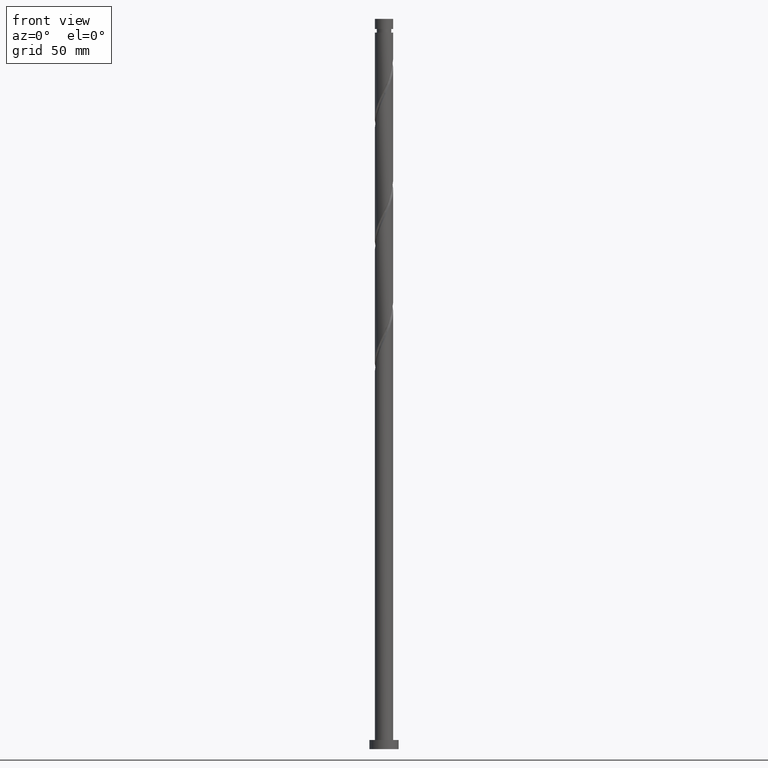
[diagram: clean part render]
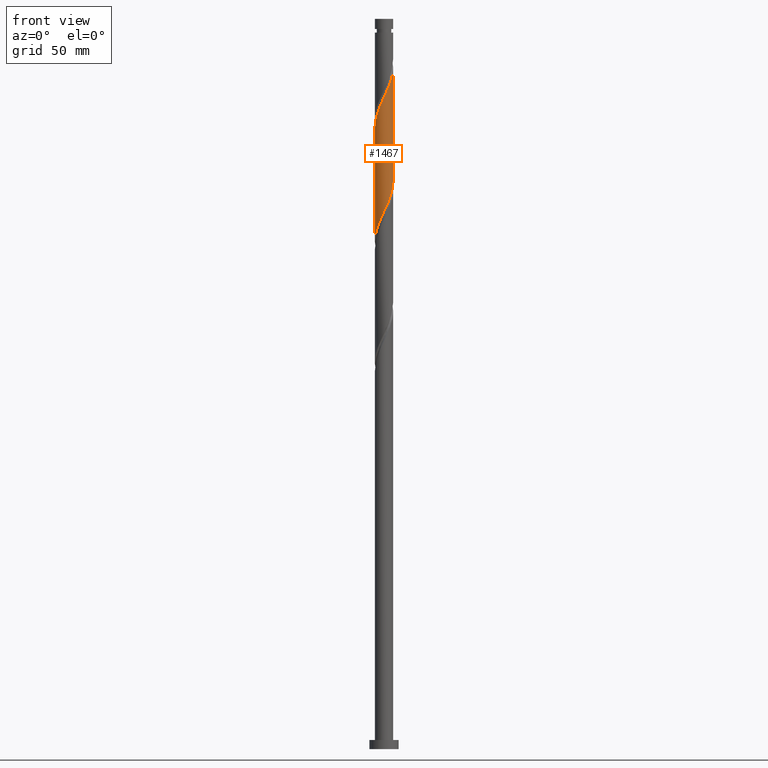
[diagram: same view with one face highlighted and labeled with its STEP entity id]
A machine part, front view. The second image highlights one B-rep face of the part: STEP entity #1467.
In plain terms, the highlighted cylindrical surface (edge-blend (fillet) strip) has radius 5 mm, axis along (-0, -0, -1).
Its self-contained STEP definition (entity closure, byte-faithful):
#18 = CARTESIAN_POINT ( 'NONE',  ( 5.000000000000007994, -0.2848686872321616326, 373.0717956240509920 ) ) ;
#19 = AXIS2_PLACEMENT_3D ( 'NONE', #1461, #345, #1101 ) ;
#41 = CARTESIAN_POINT ( 'NONE',  ( -4.967644957101774672, -0.5678939867451729961, 279.1361635102904302 ) ) ;
#62 = CARTESIAN_POINT ( 'NONE',  ( -4.977161795075921269, -0.4773473218073975288, 341.3583857325127155 ) ) ;
#65 = CARTESIAN_POINT ( 'NONE',  ( 4.769152779533161635, -1.501726261830407028, 308.0250523991793443 ) ) ;
#106 = CARTESIAN_POINT ( 'NONE',  ( 5.000000000000007105, 8.969049252399088130E-17, 373.6773869334355709 ) ) ;
#108 = EDGE_CURVE ( 'NONE', #1008, #856, #1873, .T. ) ;
#155 =( BOUNDED_CURVE ( )  B_SPLINE_CURVE ( 2, ( #1300, #185, #1454, #488, #65, #1599, #805, #837, #1769, #1779, #172, #520, #666, #205, #686, #1438, #1890, #1900, #337, #958, #1608, #1115, #989, #1617, #1465, #1319, #1148, #1446, #796, #1929, #41, #1588, #1909 ),
 .UNSPECIFIED., .F., .T. ) 
 B_SPLINE_CURVE_WITH_KNOTS ( ( 3, 2, 2, 2, 2, 2, 2, 2, 2, 2, 2, 2, 2, 2, 2, 2, 3 ),
 ( 0.5545286012773112949, 0.5583333333333333481, 0.5666666666666666519, 0.5749999999999999556, 0.5833333333333333703, 0.5916666666666666741, 0.5999999999999999778, 0.6083333333333332815, 0.6166666666666666963, 0.6250000000000000000, 0.6333333333333333037, 0.6416666666666667185, 0.6500000000000000222, 0.6583333333333333259, 0.6666666666666666297, 0.6750000000000000444, 0.6795286012773115170 ),
 .UNSPECIFIED. ) 
 CURVE ( )  GEOMETRIC_REPRESENTATION_ITEM ( )  RATIONAL_B_SPLINE_CURVE ( ( 0.9066196499552259258, 0.9068171577856385390, 0.9090909090909374823, 0.9041108139711858671, 0.9090909090909374823, 0.9041108139711858671, 0.9090909090909374823, 0.9041108139711858671, 0.9090909090909374823, 0.9041108139711858671, 0.9090909090909374823, 0.9041108139711858671, 0.9090909090909374823, 0.9041108139711858671, 0.9090909090909374823, 0.9041108139711858671, 0.9090909090909374823, 0.9041108139711858671, 0.9090909090909374823, 0.9041108139711858671, 0.9090909090909374823, 0.9041108139711858671, 0.9090909090909374823, 0.9041108139711858671, 0.9090909090909374823, 0.9041108139711858671, 0.9090909090909374823, 0.9041108139711858671, 0.9090909090909374823, 0.9041108139711858671, 0.9090909090909374823, 0.9063845652764846994, 0.9066196499552259258 ) ) 
 REPRESENTATION_ITEM ( '' )  );
#169 = CARTESIAN_POINT ( 'NONE',  ( 5.000000000000007105, 8.969049252399088130E-17, 373.6773869334355709 ) ) ;
#172 = CARTESIAN_POINT ( 'NONE',  ( 2.975633097728629828, -4.018159736459208986, 301.3583857325127155 ) ) ;
#185 = CARTESIAN_POINT ( 'NONE',  ( 5.000000000000001776, -0.2392199964337411444, 310.7530582282478804 ) ) ;
#205 = CARTESIAN_POINT ( 'NONE',  ( 1.597064489395816134, -4.767133050742391909, 298.0250523991792306 ) ) ;
#334 = CARTESIAN_POINT ( 'NONE',  ( 1.509998189908438482, -4.795422606323962000, 360.2472746214016865 ) ) ;
#337 = CARTESIAN_POINT ( 'NONE',  ( -0.9949874371066248502, -4.900000000000001243, 292.4694968436239151 ) ) ;
#345 = DIRECTION ( 'NONE',  ( -0.000000000000000000, -0.000000000000000000, -1.000000000000000000 ) ) ;
#355 = CARTESIAN_POINT ( 'NONE',  ( -0.5710221055866073758, -4.995008134297789226, 355.8028301769571158 ) ) ;
#364 = CARTESIAN_POINT ( 'NONE',  ( -0.04552271064090062519, -4.999792763986920185, 356.9139412880682016 ) ) ;
#374 = CARTESIAN_POINT ( 'NONE',  ( 2.474025528837850985, -4.376684840084815953, 362.4694968436236877 ) ) ;
#485 = CARTESIAN_POINT ( 'NONE',  ( -2.975633097728635157, -4.018159736459210762, 350.2472746214014023 ) ) ;
#488 = CARTESIAN_POINT ( 'NONE',  ( 4.926990569861231961, -1.000468106072395003, 309.1361635102904302 ) ) ;
#517 = CARTESIAN_POINT ( 'NONE',  ( -2.075185990424288640, -4.549022214184805790, 352.4694968436238014 ) ) ;
#520 = CARTESIAN_POINT ( 'NONE',  ( 2.553307491452752043, -4.330911377627212566, 300.2472746214015160 ) ) ;
#528 = CARTESIAN_POINT ( 'NONE',  ( 4.967644957101778225, -0.5678939867451752166, 372.4694968436236877 ) ) ;
#578 = VECTOR ( 'NONE', #801, 1000.000000000000000 ) ;
#644 = EDGE_CURVE ( 'NONE', #1239, #856, #155, .T. ) ;
#655 = CARTESIAN_POINT ( 'NONE',  ( 0.4799766843048083320, -5.004577393676053809, 358.0250523991793443 ) ) ;
#666 = CARTESIAN_POINT ( 'NONE',  ( 2.075185990424285531, -4.549022214184804014, 299.1361635102904870 ) ) ;
#673 = ORIENTED_EDGE ( 'NONE', *, *, #108, .T. ) ;
#686 = CARTESIAN_POINT ( 'NONE',  ( 1.084043297491209756, -4.881070592520090123, 296.9139412880682016 ) ) ;
#796 = CARTESIAN_POINT ( 'NONE',  ( -4.741018197097063513, -1.588315603019291089, 281.3583857325126587 ) ) ;
#801 = DIRECTION ( 'NONE',  ( -0.000000000000000000, -0.000000000000000000, -1.000000000000000000 ) ) ;
#802 = CARTESIAN_POINT ( 'NONE',  ( -3.746030759990443215, -3.311684396980709710, 348.0250523991792306 ) ) ;
#805 = CARTESIAN_POINT ( 'NONE',  ( 4.352708902590731732, -2.460472558129312315, 305.8028301769570589 ) ) ;
#823 = ORIENTED_EDGE ( 'NONE', *, *, #1352, .F. ) ;
#833 = CARTESIAN_POINT ( 'NONE',  ( -4.611314989205102854, -2.002984417588411947, 344.6917190658459731 ) ) ;
#837 = CARTESIAN_POINT ( 'NONE',  ( 4.094102815976365939, -2.917960698670215347, 304.6917190658458026 ) ) ;
#856 = VERTEX_POINT ( 'NONE', #1799 ) ;
#919 = VERTEX_POINT ( 'NONE', #106 ) ;
#942 = CARTESIAN_POINT ( 'NONE',  ( 5.000000000000000888, 6.123233995736766282E-16, 400.0000000000000000 ) ) ;
#952 = CARTESIAN_POINT ( 'NONE',  ( -5.000000000000000888, 0.000000000000000000, 400.0000000000000000 ) ) ;
#955 = CARTESIAN_POINT ( 'NONE',  ( 4.040292883618493924, -2.992023716709378167, 366.9139412880682016 ) ) ;
#958 = CARTESIAN_POINT ( 'NONE',  ( -1.509998189908439814, -4.795422606323952230, 291.3583857325126019 ) ) ;
#986 = CARTESIAN_POINT ( 'NONE',  ( -1.084043297491214863, -4.881070592520091900, 354.6917190658459162 ) ) ;
#989 = CARTESIAN_POINT ( 'NONE',  ( -2.901975804651633073, -4.071674892377402877, 288.0250523991794012 ) ) ;
#996 = CARTESIAN_POINT ( 'NONE',  ( 4.307186191949837095, -2.539320205857608315, 368.0250523991792875 ) ) ;
#1008 = VERTEX_POINT ( 'NONE', #1404 ) ;
#1101 = DIRECTION ( 'NONE',  ( -1.000000000000000000, 0.000000000000000000, 0.000000000000000000 ) ) ;
#1110 = CARTESIAN_POINT ( 'NONE',  ( 5.000000000000000888, 4.320092056572251041E-15, 311.2616067538119182 ) ) ;
#1115 = CARTESIAN_POINT ( 'NONE',  ( -2.474025528837848320, -4.376684840084808847, 289.1361635102904302 ) ) ;
#1123 = CARTESIAN_POINT ( 'NONE',  ( 3.329926080465416049, -3.766664944670004012, 364.6917190658460868 ) ) ;
#1136 = CARTESIAN_POINT ( 'NONE',  ( 2.901975804651632185, -4.071674892377409094, 363.5806079547347736 ) ) ;
#1145 = CARTESIAN_POINT ( 'NONE',  ( -4.926990569861238178, -1.000468106072394781, 342.4694968436236877 ) ) ;
#1148 = CARTESIAN_POINT ( 'NONE',  ( -4.307186191949835319, -2.539320205857602097, 283.5806079547348872 ) ) ;
#1239 = VERTEX_POINT ( 'NONE', #1110 ) ;
#1285 = CARTESIAN_POINT ( 'NONE',  ( 3.685109482041954543, -3.379344330689689091, 365.8028301769570589 ) ) ;
#1300 = CARTESIAN_POINT ( 'NONE',  ( 5.000000000000000888, 4.320092056572251041E-15, 311.2616067538119182 ) ) ;
#1308 = EDGE_LOOP ( 'NONE', ( #823, #1711, #673, #1424 ) ) ;
#1316 = CARTESIAN_POINT ( 'NONE',  ( -4.769152779533167852, -1.501726261830402809, 343.5806079547348872 ) ) ;
#1319 = CARTESIAN_POINT ( 'NONE',  ( -4.040292883618490372, -2.992023716709371062, 284.6917190658459731 ) ) ;
#1352 = EDGE_CURVE ( 'NONE', #919, #1239, #1727, .T. ) ;
#1390 = DIRECTION ( 'NONE',  ( -0.000000000000000000, -0.000000000000000000, -1.000000000000000000 ) ) ;
#1404 = CARTESIAN_POINT ( 'NONE',  ( -5.000000000000005329, 5.246893812653466630E-15, 340.3440536001022565 ) ) ;
#1423 = CARTESIAN_POINT ( 'NONE',  ( -4.094102815976374821, -2.917960698670215347, 346.9139412880682585 ) ) ;
#1424 = ORIENTED_EDGE ( 'NONE', *, *, #644, .F. ) ;
#1435 = CARTESIAN_POINT ( 'NONE',  ( 0.9949874371066240730, -4.900000000000004796, 359.1361635102903733 ) ) ;
#1438 = CARTESIAN_POINT ( 'NONE',  ( 0.5710221055866048223, -4.995008134297783009, 295.8028301769570589 ) ) ;
#1443 = CARTESIAN_POINT ( 'NONE',  ( -5.000000000000007105, -0.2392199964337438367, 340.8526021256663512 ) ) ;
#1446 = CARTESIAN_POINT ( 'NONE',  ( -4.574079500281179378, -2.086616695005834909, 282.4694968436236309 ) ) ;
#1451 = CARTESIAN_POINT ( 'NONE',  ( 4.907956893912952090, -1.090014511032755262, 371.3583857325127155 ) ) ;
#1454 = CARTESIAN_POINT ( 'NONE',  ( 4.977161795075916828, -0.4773473218074010815, 310.2472746214015729 ) ) ;
#1461 = CARTESIAN_POINT ( 'NONE',  ( 0.000000000000000000, 0.000000000000000000, 400.0000000000000000 ) ) ;
#1465 = CARTESIAN_POINT ( 'NONE',  ( -3.685109482041952766, -3.379344330689683318, 285.8028301769571158 ) ) ;
#1467 = ADVANCED_FACE ( 'NONE', ( #1885 ), #1613, .T. ) ;
#1477 =( BOUNDED_CURVE ( )  B_SPLINE_CURVE ( 2, ( #1906, #1443, #62, #1145, #1316, #833, #1775, #1423, #802, #1585, #485, #1887, #517, #1605, #986, #355, #364, #655, #1435, #334, #1926, #374, #1136, #1123, #1285, #955, #996, #1756, #1596, #1451, #528, #18, #169 ),
 .UNSPECIFIED., .F., .T. ) 
 B_SPLINE_CURVE_WITH_KNOTS ( ( 3, 2, 2, 2, 2, 2, 2, 2, 2, 2, 2, 2, 2, 2, 2, 2, 3 ),
 ( 0.5545286012773114059, 0.5583333333333333481, 0.5666666666666666519, 0.5749999999999999556, 0.5833333333333332593, 0.5916666666666666741, 0.5999999999999999778, 0.6083333333333333925, 0.6166666666666666963, 0.6250000000000000000, 0.6333333333333333037, 0.6416666666666666075, 0.6500000000000000222, 0.6583333333333333259, 0.6666666666666667407, 0.6750000000000000444, 0.6795286012773115170 ),
 .UNSPECIFIED. ) 
 CURVE ( )  GEOMETRIC_REPRESENTATION_ITEM ( )  RATIONAL_B_SPLINE_CURVE ( ( 0.9066196499552303667, 0.9068171577856432020, 0.9090909090909421453, 0.9041108139711903080, 0.9090909090909421453, 0.9041108139711903080, 0.9090909090909421453, 0.9041108139711903080, 0.9090909090909421453, 0.9041108139711903080, 0.9090909090909421453, 0.9041108139711903080, 0.9090909090909421453, 0.9041108139711903080, 0.9090909090909421453, 0.9041108139711903080, 0.9090909090909421453, 0.9041108139711903080, 0.9090909090909421453, 0.9041108139711903080, 0.9090909090909421453, 0.9041108139711903080, 0.9090909090909421453, 0.9041108139711903080, 0.9090909090909421453, 0.9041108139711903080, 0.9090909090909421453, 0.9041108139711903080, 0.9090909090909421453, 0.9041108139711903080, 0.9090909090909421453, 0.9063845652764892513, 0.9066196499552304777 ) ) 
 REPRESENTATION_ITEM ( '' )  );
#1585 = CARTESIAN_POINT ( 'NONE',  ( -3.397958704004512498, -3.705408095291208959, 349.1361635102904870 ) ) ;
#1588 = CARTESIAN_POINT ( 'NONE',  ( -5.000000000000000888, -0.2848686872321583574, 278.5338647298631258 ) ) ;
#1596 = CARTESIAN_POINT ( 'NONE',  ( 4.741018197097066178, -1.588315603019296640, 370.2472746214014592 ) ) ;
#1599 = CARTESIAN_POINT ( 'NONE',  ( 4.611314989205095749, -2.002984417588413280, 306.9139412880681448 ) ) ;
#1605 = CARTESIAN_POINT ( 'NONE',  ( -1.597064489395822129, -4.767133050742397238, 353.5806079547348872 ) ) ;
#1608 = CARTESIAN_POINT ( 'NONE',  ( -1.992011859373145732, -4.586053723204382315, 290.2472746214016297 ) ) ;
#1613 = CYLINDRICAL_SURFACE ( 'NONE', #19, 5.000000000000000888 ) ;
#1617 = CARTESIAN_POINT ( 'NONE',  ( -3.329926080465414273, -3.766664944669994686, 286.9139412880681448 ) ) ;
#1711 = ORIENTED_EDGE ( 'NONE', *, *, #1731, .F. ) ;
#1727 = LINE ( 'NONE', #942, #578 ) ;
#1731 = EDGE_CURVE ( 'NONE', #1008, #919, #1477, .T. ) ;
#1756 = CARTESIAN_POINT ( 'NONE',  ( 4.574079500281184707, -2.086616695005839350, 369.1361635102904870 ) ) ;
#1769 = CARTESIAN_POINT ( 'NONE',  ( 3.746030759990436110, -3.311684396980710599, 303.5806079547349441 ) ) ;
#1775 = CARTESIAN_POINT ( 'NONE',  ( -4.352708902590737949, -2.460472558129314091, 345.8028301769570589 ) ) ;
#1779 = CARTESIAN_POINT ( 'NONE',  ( 3.397958704004506725, -3.705408095291204962, 302.4694968436237446 ) ) ;
#1799 = CARTESIAN_POINT ( 'NONE',  ( -5.000000000000000888, 7.578846618277270071E-15, 277.9282734204785470 ) ) ;
#1801 = VECTOR ( 'NONE', #1390, 1000.000000000000000 ) ;
#1873 = LINE ( 'NONE', #952, #1801 ) ;
#1885 = FACE_OUTER_BOUND ( 'NONE', #1308, .T. ) ;
#1887 = CARTESIAN_POINT ( 'NONE',  ( -2.553307491452758260, -4.330911377627217007, 351.3583857325128292 ) ) ;
#1890 = CARTESIAN_POINT ( 'NONE',  ( 0.04552271064089660757, -4.999792763986913968, 294.6917190658459731 ) ) ;
#1900 = CARTESIAN_POINT ( 'NONE',  ( -0.4799766843048117737, -5.004577393676047592, 293.5806079547347167 ) ) ;
#1906 = CARTESIAN_POINT ( 'NONE',  ( -5.000000000000005329, 5.246893812653466630E-15, 340.3440536001022565 ) ) ;
#1909 = CARTESIAN_POINT ( 'NONE',  ( -5.000000000000000888, 7.578846618277270071E-15, 277.9282734204785470 ) ) ;
#1926 = CARTESIAN_POINT ( 'NONE',  ( 1.992011859373143956, -4.586053723204385868, 361.3583857325126019 ) ) ;
#1929 = CARTESIAN_POINT ( 'NONE',  ( -4.907956893912946761, -1.090014511032748823, 280.2472746214014592 ) ) ;